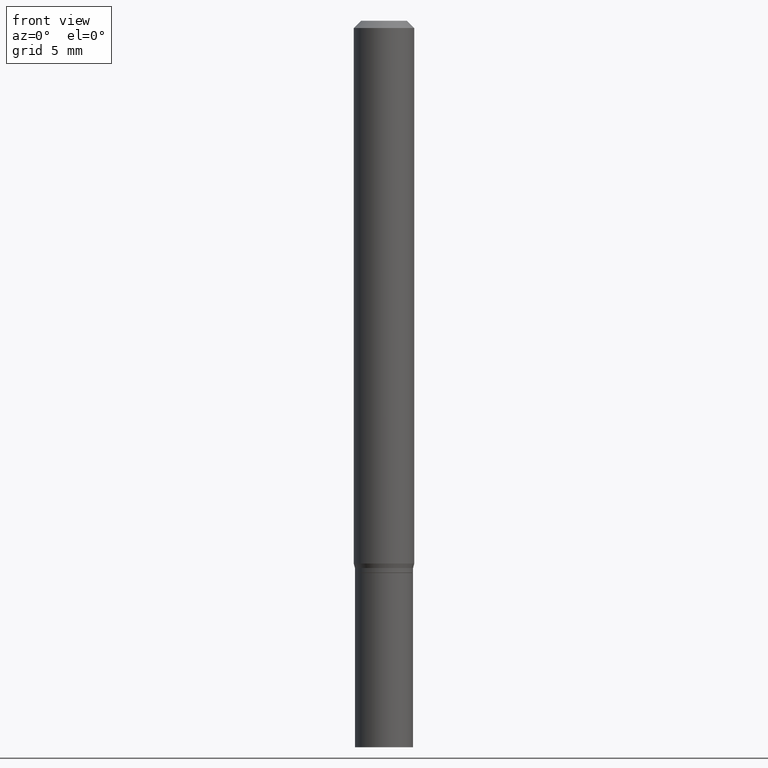
[diagram: clean part render]
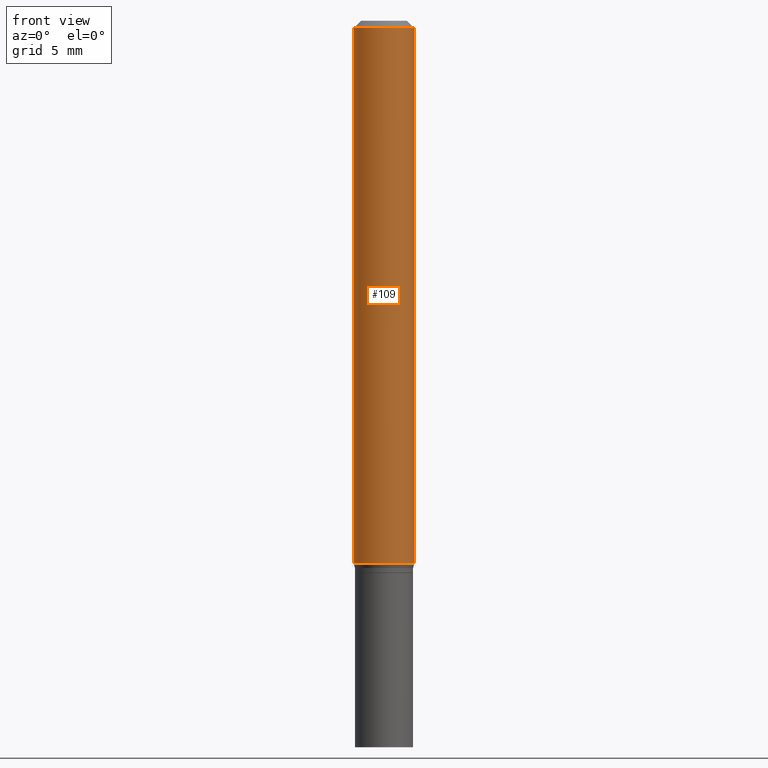
[diagram: same view with one face highlighted and labeled with its STEP entity id]
A machine part, front view. The second image highlights one B-rep face of the part: STEP entity #109.
In plain terms, the highlighted cylindrical surface (edge-blend (fillet) strip) has radius 1.5875 mm, axis along (-0, 0, 1).
Its self-contained STEP definition (entity closure, byte-faithful):
#8 = VERTEX_POINT ( 'NONE', #203 ) ;
#23 = DIRECTION ( 'NONE',  ( -2.445468806185136877E-29, 3.491481338843145188E-15, 1.000000000000000000 ) ) ;
#24 = LINE ( 'NONE', #156, #73 ) ;
#28 = VERTEX_POINT ( 'NONE', #309 ) ;
#31 = CARTESIAN_POINT ( 'NONE',  ( 0.000000000000000000, 0.000000000000000000, 0.000000000000000000 ) ) ;
#35 = CARTESIAN_POINT ( 'NONE',  ( 2.740563216406686834E-29, -3.912797948517154069E-15, -1.120669872981078674 ) ) ;
#43 = DIRECTION ( 'NONE',  ( 1.000000000000000000, -6.982962677686270655E-15, 0.000000000000000000 ) ) ;
#60 = FACE_OUTER_BOUND ( 'NONE', #402, .T. ) ;
#73 = VECTOR ( 'NONE', #346, 39.37007874015748143 ) ;
#84 = ORIENTED_EDGE ( 'NONE', *, *, #236, .T. ) ;
#85 = EDGE_CURVE ( 'NONE', #28, #226, #24, .T. ) ;
#109 = ADVANCED_FACE ( 'NONE', ( #60 ), #426, .T. ) ;
#121 = VECTOR ( 'NONE', #23, 39.37007874015748143 ) ;
#126 = DIRECTION ( 'NONE',  ( 1.000000000000000000, -6.982962677686266711E-15, 0.000000000000000000 ) ) ;
#144 = CARTESIAN_POINT ( 'NONE',  ( 0.06250000000000000000, -4.349233115872546527E-15, -1.120669872981078674 ) ) ;
#150 = AXIS2_PLACEMENT_3D ( 'NONE', #159, #454, #126 ) ;
#156 = CARTESIAN_POINT ( 'NONE',  ( -0.06250000000000000000, 4.440892098500626162E-16, -3.074334431409316114E-30 ) ) ;
#159 = CARTESIAN_POINT ( 'NONE',  ( 3.668203209277705088E-31, -5.237222008264718399E-17, -0.01499999999999999944 ) ) ;
#203 = CARTESIAN_POINT ( 'NONE',  ( 0.06250000000000000000, -4.888073874380388472E-16, -0.01499999999999999944 ) ) ;
#226 = VERTEX_POINT ( 'NONE', #285 ) ;
#233 = CARTESIAN_POINT ( 'NONE',  ( 0.06250000000000000000, -4.364351673553916694E-16, 3.047610484872459871E-30 ) ) ;
#236 = EDGE_CURVE ( 'NONE', #28, #292, #325, .T. ) ;
#274 = ORIENTED_EDGE ( 'NONE', *, *, #85, .F. ) ;
#285 = CARTESIAN_POINT ( 'NONE',  ( -0.06250000000000000000, -1.538495874449838155E-15, -0.01499999999999999944 ) ) ;
#292 = VERTEX_POINT ( 'NONE', #144 ) ;
#309 = CARTESIAN_POINT ( 'NONE',  ( -0.06250000000000000000, -3.468708738667092242E-15, -1.120669872981078674 ) ) ;
#314 = AXIS2_PLACEMENT_3D ( 'NONE', #35, #361, #43 ) ;
#325 = CIRCLE ( 'NONE', #314, 0.06250000000000000000 ) ;
#346 = DIRECTION ( 'NONE',  ( -2.445468806185136877E-29, 3.491481338843145188E-15, 1.000000000000000000 ) ) ;
#354 = DIRECTION ( 'NONE',  ( 1.000000000000000000, -6.982962677686266711E-15, 4.876176775795935793E-29 ) ) ;
#361 = DIRECTION ( 'NONE',  ( -2.445468806185136597E-29, 3.491481338843145583E-15, 1.000000000000000000 ) ) ;
#390 = EDGE_CURVE ( 'NONE', #226, #8, #452, .T. ) ;
#394 = AXIS2_PLACEMENT_3D ( 'NONE', #31, #466, #354 ) ;
#402 = EDGE_LOOP ( 'NONE', ( #274, #84, #453, #409 ) ) ;
#403 = EDGE_CURVE ( 'NONE', #292, #8, #447, .T. ) ;
#409 = ORIENTED_EDGE ( 'NONE', *, *, #390, .F. ) ;
#426 = CYLINDRICAL_SURFACE ( 'NONE', #394, 0.06250000000000000000 ) ;
#447 = LINE ( 'NONE', #233, #121 ) ;
#452 = CIRCLE ( 'NONE', #150, 0.06250000000000000000 ) ;
#453 = ORIENTED_EDGE ( 'NONE', *, *, #403, .T. ) ;
#454 = DIRECTION ( 'NONE',  ( -2.445468806185136597E-29, 3.491481338843145583E-15, 1.000000000000000000 ) ) ;
#466 = DIRECTION ( 'NONE',  ( -2.445468806185136597E-29, 3.491481338843145583E-15, 1.000000000000000000 ) ) ;